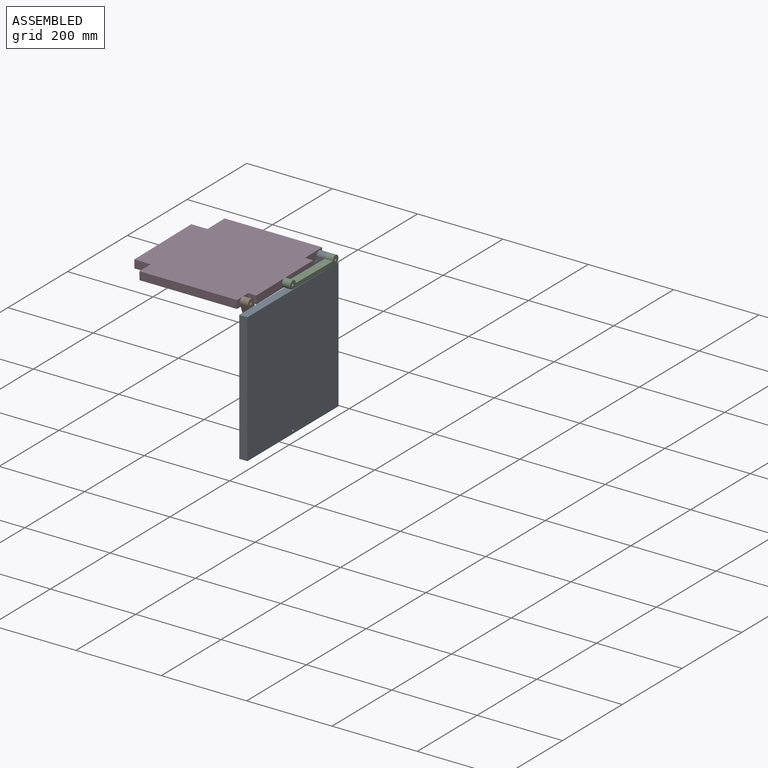
[diagram: assembled view]
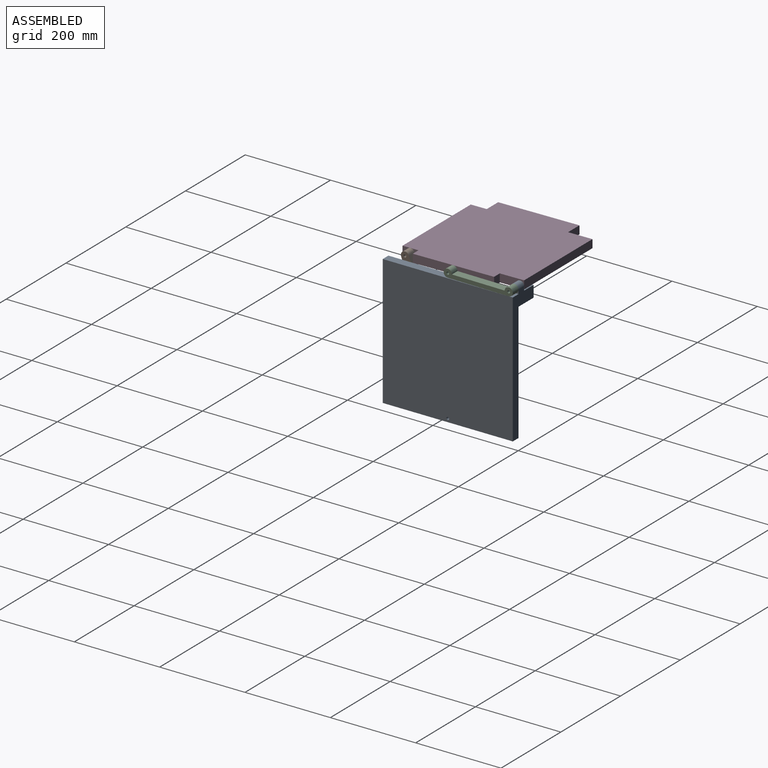
[diagram: assembled view, second angle]
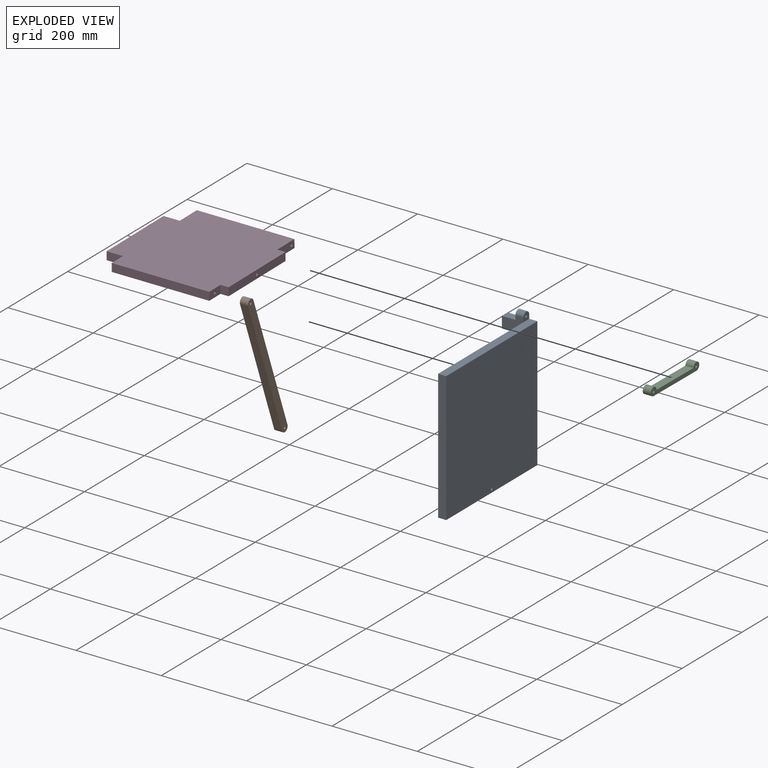
[diagram: exploded view]
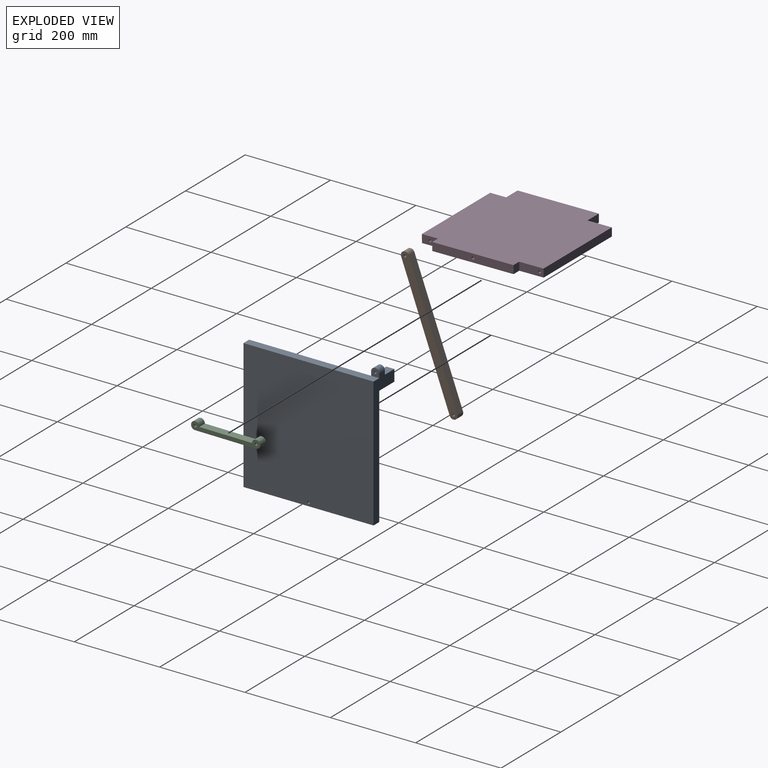
[diagram: exploded view, second angle]
ASSEMBLY  parts=4 mates=4
PART A: 15 faces, bbox 69.9x304.8x323.9 mm
  f0: plane 31.75x19.05mm, normal (0,0,1), area 604.8mm2, adj f1,f7,f9,f11
  f1: plane 314.33x69.85mm, normal (0,1,0), area 7349.7mm2, adj f0,f2,f4,f5,f6,f8,f9,f10
  f2: plane 304.8x19.05mm, normal (0,0,1), area 5806.4mm2, adj f1,f3,f5,f6,f12
  f3: plane 304.8x19.05mm, normal (0,-1,0), area 5806.4mm2, adj f2,f4,f5,f6
  f4: plane 304.8x19.05mm, normal (0,0,-1), area 5806.4mm2, adj f1,f3,f5,f6
  f5: plane 304.8x304.8mm, normal (1,0,0), area 92871.4mm2, adj f1,f2,f3,f4,f14
  f6: plane 304.8x304.8mm, normal (-1,0,0), area 92360.7mm2, adj f1,f2,f3,f4,f7,f8,f14
  f7: plane 50.8x36.33mm, normal (0,-1,0), area 1543.3mm2, adj f0,f6,f8,f9,f10,f11,f12
  f8: plane 50.8x19.05mm, normal (0,0,-1), area 967.7mm2, adj f1,f6,f7,f9
  f9: plane 26.81x19.05mm, normal (-1,0,0), area 510.7mm2, adj f0,f1,f7,f8
  f10: cylinder r=9.53mm len=19.05mm, axis (1,0,0), area 570mm2, adj f1,f7,f11,f12
  f11: plane 19.05x19.05mm, normal (-1,0,0), area 292.3mm2, adj f0,f1,f7,f10,f13
  f12: plane 19.05x19.05mm, normal (1,0,0), area 292.3mm2, adj f1,f2,f7,f10,f13
  f13: cylinder r=3.17mm len=19.05mm, axis (1,0,0), area 380mm2, adj f11,f12
  f14: cylinder r=3.17mm len=19.05mm, axis (-1,0,0), area 380mm2, adj f5,f6
PART B: 8 faces, bbox 19.1x132.7x325.7 mm
  f0: cylinder r=9.53mm len=19.05mm, axis (-1,0,0), area 570mm2, adj f1,f3,f4,f5
  f1: plane 306.6x113.68mm, normal (0,-0.94,-0.35), area 6229.3mm2, adj f0,f2,f4,f5
  f2: cylinder r=9.53mm len=19.05mm, axis (-1,0,0), area 570mm2, adj f1,f3,f4,f5
  f3: plane 306.6x113.68mm, normal (0,0.94,0.35), area 6229.3mm2, adj f0,f2,f4,f5
  f4: plane 325.65x132.73mm, normal (1,0,0), area 6451mm2, adj f0,f1,f2,f3,f6,f7
  f5: plane 325.65x132.73mm, normal (-1,0,0), area 6451mm2, adj f0,f1,f2,f3,f6,f7
  f6: cylinder r=3.17mm len=19.05mm, axis (-1,0,0), area 380mm2, adj f4,f5
  f7: cylinder r=3.17mm len=19.05mm, axis (-1,0,0), area 380mm2, adj f4,f5
PART C: 8 faces, bbox 19.1x161.9x19.1 mm
  f0: plane 123.83x19.05mm, normal (0,0,1), area 2358.9mm2, adj f1,f3,f4,f5
  f1: cylinder r=9.53mm len=19.05mm, axis (-1,0,0), area 855.1mm2, adj f0,f2,f4,f5
  f2: plane 142.88x19.05mm, normal (0,0,-1), area 2721.8mm2, adj f1,f3,f4,f5
  f3: cylinder r=9.53mm len=19.05mm, axis (-1,0,0), area 855.1mm2, adj f0,f2,f4,f5
  f4: plane 161.93x19.05mm, normal (1,0,0), area 1725.1mm2, adj f0,f1,f2,f3,f6,f7
  f5: plane 161.93x19.05mm, normal (-1,0,0), area 1725.1mm2, adj f0,f1,f2,f3,f6,f7
  f6: cylinder r=3.17mm len=19.05mm, axis (-1,0,0), area 380mm2, adj f4,f5
  f7: cylinder r=3.17mm len=19.05mm, axis (-1,0,0), area 380mm2, adj f4,f5
PART D: 17 faces, bbox 285.8x285.1x19.1 mm
  f0: plane 19.05x19.05mm, normal (0,1,0), area 362.9mm2, adj f2,f11,f12,f13
  f1: plane 19.05x19.05mm, normal (0,-1,0), area 362.9mm2, adj f10,f11,f12,f13
  f2: plane 57.15x19.05mm, normal (1,0,0), area 1057mm2, adj f0,f3,f11,f12,f15
  f3: plane 228.6x19.05mm, normal (0,1,0), area 4354.8mm2, adj f2,f4,f11,f12
  f4: plane 57.15x19.05mm, normal (-1,0,0), area 1057mm2, adj f3,f5,f11,f12,f15
  f5: plane 38.1x19.05mm, normal (0,1,0), area 725.8mm2, adj f4,f6,f11,f12
  f6: plane 190.5x19.05mm, normal (-1,0,0), area 3597.4mm2, adj f5,f7,f11,f12,f14
  f7: plane 38.1x19.05mm, normal (0,-1,0), area 725.8mm2, adj f6,f8,f11,f12
  f8: plane 37.48x19.05mm, normal (-1,0,0), area 682.2mm2, adj f7,f9,f11,f12,f16
  f9: plane 228.6x19.05mm, normal (0,-1,0), area 4354.8mm2, adj f8,f10,f11,f12
  f10: plane 37.48x19.05mm, normal (1,0,0), area 682.2mm2, adj f1,f9,f11,f12,f16
  f11: plane 285.75x285.13mm, normal (0,0,1), area 76066.9mm2, adj f0,f1,f2,f3,f4,f5,f6,f7
  f12: plane 285.75x285.13mm, normal (0,0,-1), area 76066.9mm2, adj f0,f1,f2,f3,f4,f5,f6,f7
  f13: plane 190.5x19.05mm, normal (1,0,0), area 3597.4mm2, adj f0,f1,f11,f12,f14
  f14: cylinder r=3.17mm len=285.75mm, axis (1,0,0), area 5700.5mm2, adj f6,f13
  f15: cylinder r=3.17mm len=228.6mm, axis (1,0,0), area 4560.4mm2, adj f2,f4
  f16: cylinder r=3.17mm len=228.6mm, axis (1,0,0), area 4560.4mm2, adj f8,f10
PLACE A t=(-29.96,-20.3,25.25)mm fixed
PLACE B rot(axis=(-1,0,0),0deg) t=(-29.96,-20.29,25.25)mm
PLACE C rot(axis=(-1,0,0),0.5deg) t=(-29.96,-20.38,25.18)mm
PLACE D rot(axis=(1,0,0),0.6deg) t=(-29.96,-20.2,28.02)mm
MATE revolute A.f14 <-> B.f2  axis (-1,0,0) through (-29.96,-172.7,-271.82)mm
MATE revolute C.f1 <-> D.f14  axis (-1,0,0) through (-29.96,-172.69,35.96)mm
MATE revolute D.f16 <-> B.f7  axis (1,0,0) through (-49.01,-286.36,34.78)mm
MATE revolute A.f10 <-> C.f6  axis (1,0,0) through (-29.96,-29.82,34.78)mm
